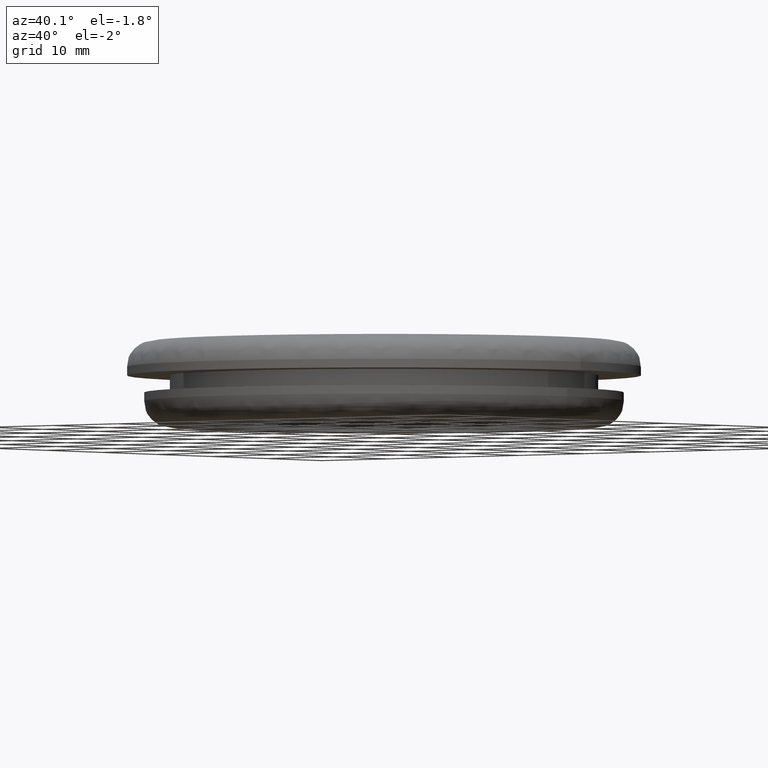
[diagram: clean part render]
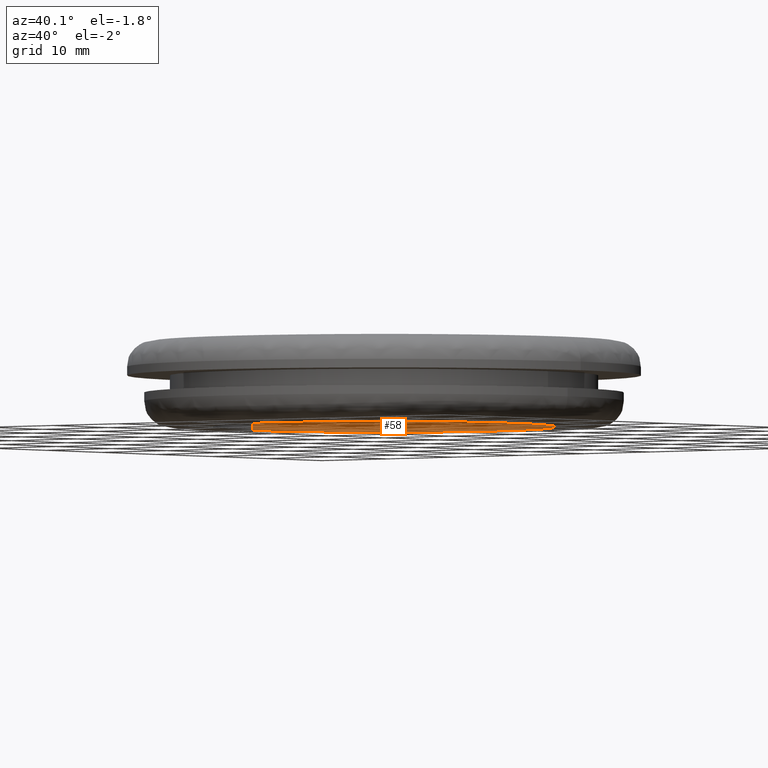
[diagram: same view with one face highlighted and labeled with its STEP entity id]
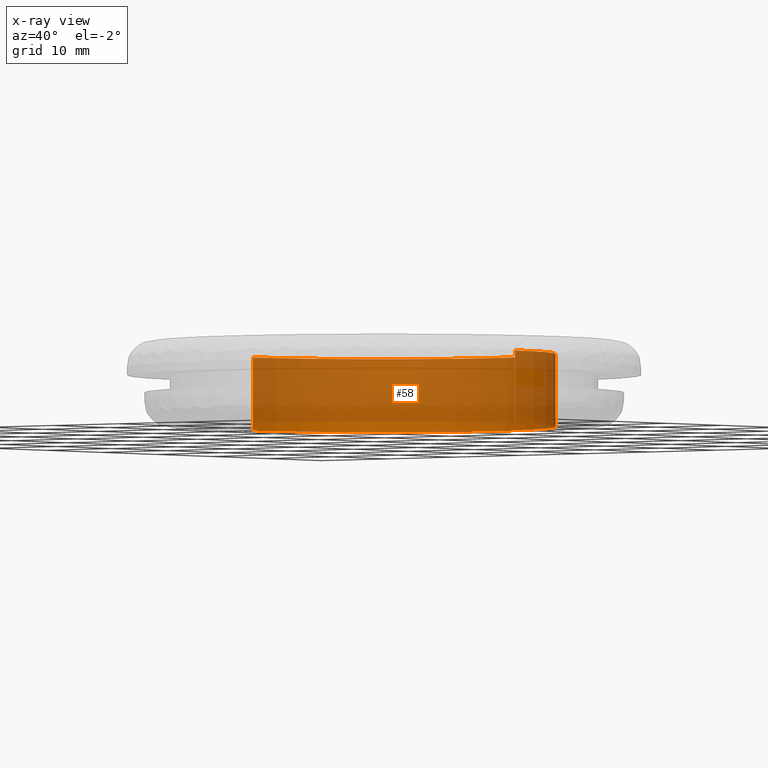
[diagram: x-ray of the same camera — body ghosted, the highlighted face saturated]
A machine part, auxiliary view. The second image highlights one B-rep face of the part: STEP entity #58.
The next image is the same camera in x-ray: the body ghosted, the highlighted face saturated — about 85% of this face is hidden behind the body in this view.
In plain terms, the highlighted cylindrical surface (partial cylindrical patch) has radius 20 mm, axis along (0, -0, 1).
Its self-contained STEP definition (entity closure, byte-faithful):
#58=ADVANCED_FACE('',(#245),#244,.F.);
#244=CYLINDRICAL_SURFACE('',#445,2.00000000000E+01);
#245=FACE_OUTER_BOUND('',#446,.T.);
#442=CARTESIAN_POINT('',(-1.19371179608E-12,0.00000000000E+00,0.00000000000E+00));
#443=DIRECTION('',(0.00000000000E+00,-0.00000000000E+00,1.00000000000E+00));
#444=DIRECTION('',(1.00000000000E+00,-0.00000000000E+00,-0.00000000000E+00));
#445=AXIS2_PLACEMENT_3D('',#442,#443,#444);
#446=EDGE_LOOP('',(#520,#521,#522,#523));
#520=ORIENTED_EDGE('',*,*,#547,.T.);
#521=ORIENTED_EDGE('',*,*,#564,.T.);
#522=ORIENTED_EDGE('',*,*,#530,.F.);
#523=ORIENTED_EDGE('',*,*,#565,.F.);
#530=EDGE_CURVE('',#580,#581,#582,.T.);
#547=EDGE_CURVE('',#693,#692,#700,.T.);
#564=EDGE_CURVE('',#692,#581,#806,.T.);
#565=EDGE_CURVE('',#693,#580,#812,.T.);
#580=VERTEX_POINT('',#828);
#581=VERTEX_POINT('',#829);
#582=CIRCLE('',#833,2.00000000000E+01);
#692=VERTEX_POINT('',#908);
#693=VERTEX_POINT('',#909);
#700=CIRCLE('',#917,2.00000000000E+01);
#806=(BOUNDED_CURVE() B_SPLINE_CURVE(1,(#970,#971),.UNSPECIFIED.,.F.,.F.) B_SPLINE_CURVE_WITH_KNOTS((2,2),(8.33333343261E-02,9.16666664274E-01),.UNSPECIFIED.) CURVE() GEOMETRIC_REPRESENTATION_ITEM() RATIONAL_B_SPLINE_CURVE((1.00000000000E+00,1.00000000000E+00)) REPRESENTATION_ITEM('') );
#812=(BOUNDED_CURVE() B_SPLINE_CURVE(1,(#972,#973),.UNSPECIFIED.,.F.,.F.) B_SPLINE_CURVE_WITH_KNOTS((2,2),(8.33333333333E-02,9.16666666667E-01),.UNSPECIFIED.) CURVE() GEOMETRIC_REPRESENTATION_ITEM() RATIONAL_B_SPLINE_CURVE((7.50000000000E-01,7.50000000000E-01)) REPRESENTATION_ITEM('') );
#828=CARTESIAN_POINT('',(-2.00000000000E+01,0.00000000000E+00,-1.50000000000E+00));
#829=CARTESIAN_POINT('',(2.00000000000E+01,0.00000000000E+00,-1.50000000000E+00));
#830=CARTESIAN_POINT('',(-1.19371179608E-12,0.00000000000E+00,-1.50000000000E+00));
#831=DIRECTION('',(-0.00000000000E+00,0.00000000000E+00,-1.00000000000E+00));
#832=DIRECTION('',(-1.00000000000E+00,-1.22460635382E-16,0.00000000000E+00));
#833=AXIS2_PLACEMENT_3D('',#830,#831,#832);
#908=CARTESIAN_POINT('',(2.00000000000E+01,0.00000000000E+00,-1.00000000000E+01));
#909=CARTESIAN_POINT('',(-2.00000000000E+01,0.00000000000E+00,-1.00000000000E+01));
#914=CARTESIAN_POINT('',(-1.19371179608E-12,0.00000000000E+00,-1.00000000000E+01));
#915=DIRECTION('',(-0.00000000000E+00,0.00000000000E+00,-1.00000000000E+00));
#916=DIRECTION('',(-1.00000000000E+00,-1.22460635382E-16,0.00000000000E+00));
#917=AXIS2_PLACEMENT_3D('',#914,#915,#916);
#970=CARTESIAN_POINT('',(2.00000000000E+01,0.00000000000E+00,-9.99999998987E+00));
#971=CARTESIAN_POINT('',(2.00000000000E+01,0.00000000000E+00,-1.50000002441E+00));
#972=CARTESIAN_POINT('',(-2.00000000000E+01,-2.36847578587E-15,-1.00000000000E+01));
#973=CARTESIAN_POINT('',(-2.00000000000E+01,-2.36847578587E-15,-1.50000000000E+00));